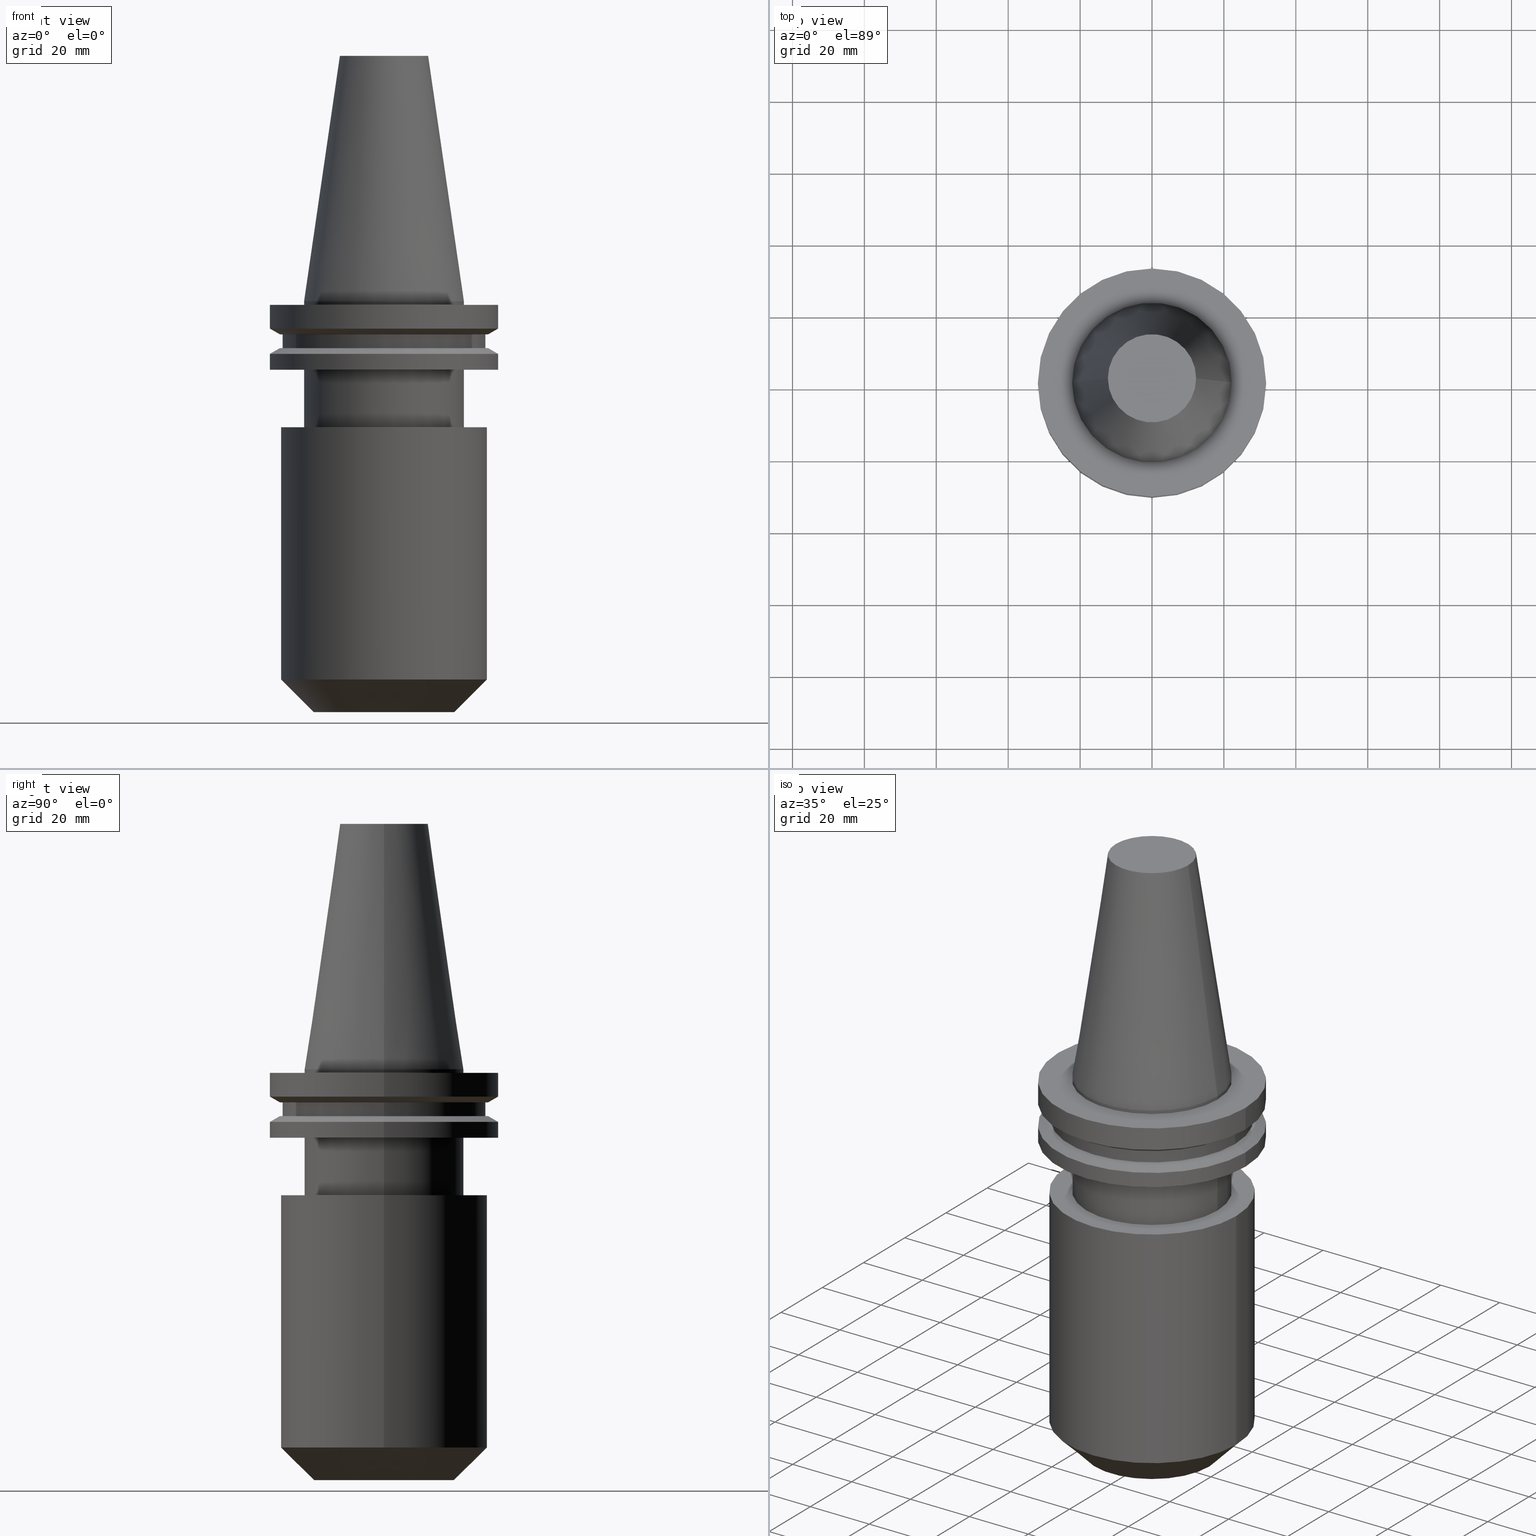
[diagram: canonical four-view strip — front | top / right | iso, engineering-drawing reading convention]
A machine part, canonical four-view strip (front | top / right | iso — engineering-drawing reading convention). The complete STEP part file that produces these views, byte-faithful:
ISO-10303-21;
HEADER;
FILE_DESCRIPTION (( 'STEP AP203' ),
    '1' );
FILE_NAME ('BCV40-EM1_000-4_5.stp',
    '2022-02-28T22:48:19',
    ( '' ),
    ( '' ),
    'SwSTEP 2.0',
    'SolidWorks 2021',
    '' );
FILE_SCHEMA (( 'CONFIG_CONTROL_DESIGN' ));
ENDSEC;

DATA;
#1 = DIRECTION ( 'NONE',  ( -0.000000000000000000, -0.000000000000000000, 1.000000000000000000 ) ) ;
#2 = CARTESIAN_POINT ( 'NONE',  ( 0.000000000000000000, 0.000000000000000000, 68.25000000000000000 ) ) ;
#3 = VECTOR ( 'NONE', #502, 999.9999999999998863 ) ;
#4 = EDGE_LOOP ( 'NONE', ( #632, #399, #512, #13 ) ) ;
#5 = CIRCLE ( 'NONE', #391, 28.60000000000000142 ) ;
#6 = ADVANCED_FACE ( 'NONE', ( #673 ), #540, .T. ) ;
#7 = DIRECTION ( 'NONE',  ( -0.000000000000000000, -0.000000000000000000, 1.000000000000000000 ) ) ;
#8 = DIRECTION ( 'NONE',  ( 1.000000000000000000, 0.000000000000000000, 0.000000000000000000 ) ) ;
#9 = EDGE_LOOP ( 'NONE', ( #341, #596, #669, #167 ) ) ;
#10 = DIRECTION ( 'NONE',  ( 1.000000000000000000, 0.000000000000000000, 0.000000000000000000 ) ) ;
#11 = DIRECTION ( 'NONE',  ( -1.000000000000000000, 0.000000000000000000, -0.000000000000000000 ) ) ;
#12 = EDGE_LOOP ( 'NONE', ( #845, #347, #551, #71 ) ) ;
#13 = ORIENTED_EDGE ( 'NONE', *, *, #793, .T. ) ;
#14 = EDGE_LOOP ( 'NONE', ( #287, #364 ) ) ;
#15 = APPROVAL_DATE_TIME ( #298, #760 ) ;
#16 = DIRECTION ( 'NONE',  ( -0.000000000000000000, -0.000000000000000000, 1.000000000000000000 ) ) ;
#17 = ORIENTED_EDGE ( 'NONE', *, *, #362, .T. ) ;
#18 = VECTOR ( 'NONE', #16, 1000.000000000000000 ) ;
#19 = EDGE_CURVE ( 'NONE', #98, #639, #259, .T. ) ;
#20 = AXIS2_PLACEMENT_3D ( 'NONE', #776, #185, #106 ) ;
#21 = ADVANCED_FACE ( 'NONE', ( #466 ), #181, .T. ) ;
#22 = COORDINATED_UNIVERSAL_TIME_OFFSET ( 6, 0, .BEHIND. ) ;
#23 = PLANE ( 'NONE',  #250 ) ;
#24 = DIRECTION ( 'NONE',  ( -0.000000000000000000, -0.000000000000000000, 1.000000000000000000 ) ) ;
#25 = EDGE_LOOP ( 'NONE', ( #724, #149 ) ) ;
#26 = CARTESIAN_POINT ( 'NONE',  ( 0.000000000000000000, 12.69999999999999929, -114.2999999999999972 ) ) ;
#27 = VERTEX_POINT ( 'NONE', #471 ) ;
#28 = APPROVAL_STATUS ( 'not_yet_approved' ) ;
#29 = DIRECTION ( 'NONE',  ( -1.000000000000000000, 0.000000000000000000, -0.000000000000000000 ) ) ;
#30 = ADVANCED_FACE ( 'NONE', ( #728 ), #655, .T. ) ;
#31 = DIRECTION ( 'NONE',  ( 1.000000000000000000, 0.000000000000000000, 0.000000000000000000 ) ) ;
#32 = AXIS2_PLACEMENT_3D ( 'NONE', #682, #363, #631 ) ;
#33 =( GEOMETRIC_REPRESENTATION_CONTEXT ( 3 ) GLOBAL_UNCERTAINTY_ASSIGNED_CONTEXT ( ( #675 ) ) GLOBAL_UNIT_ASSIGNED_CONTEXT ( ( #135, #667, #339 ) ) REPRESENTATION_CONTEXT ( 'NONE', 'WORKASPACE' ) );
#34 = APPROVAL_STATUS ( 'not_yet_approved' ) ;
#35 = EDGE_LOOP ( 'NONE', ( #42, #267 ) ) ;
#36 = CARTESIAN_POINT ( 'NONE',  ( 31.75000000000000000, 0.000000000000000000, -1.000000000000000888 ) ) ;
#37 = DIRECTION ( 'NONE',  ( 1.000000000000000000, 0.000000000000000000, 0.000000000000000000 ) ) ;
#38 = ADVANCED_FACE ( 'NONE', ( #680 ), #90, .F. ) ;
#39 = EDGE_LOOP ( 'NONE', ( #187, #726, #645, #543 ) ) ;
#40 = CARTESIAN_POINT ( 'NONE',  ( 0.000000000000000000, 0.000000000000000000, -1.000000000000000888 ) ) ;
#41 = DIRECTION ( 'NONE',  ( -0.000000000000000000, -0.000000000000000000, 1.000000000000000000 ) ) ;
#42 = ORIENTED_EDGE ( 'NONE', *, *, #407, .T. ) ;
#43 = AXIS2_PLACEMENT_3D ( 'NONE', #817, #498, #827 ) ;
#44 = DIRECTION ( 'NONE',  ( 1.000000000000000000, 0.000000000000000000, 0.000000000000000000 ) ) ;
#45 = EDGE_LOOP ( 'NONE', ( #278, #85 ) ) ;
#46 = FACE_OUTER_BOUND ( 'NONE', #39, .T. ) ;
#47 = CC_DESIGN_DATE_AND_TIME_ASSIGNMENT ( #93, #560, ( #198 ) ) ;
#48 = LINE ( 'NONE', #97, #3 ) ;
#49 = FACE_OUTER_BOUND ( 'NONE', #176, .T. ) ;
#50 = ORIENTED_EDGE ( 'NONE', *, *, #485, .F. ) ;
#51 = LINE ( 'NONE', #592, #305 ) ;
#52 = DIRECTION ( 'NONE',  ( 1.000000000000000000, 0.000000000000000000, 0.000000000000000000 ) ) ;
#53 = EDGE_LOOP ( 'NONE', ( #468, #274, #786, #256 ) ) ;
#54 = FACE_OUTER_BOUND ( 'NONE', #590, .T. ) ;
#55 = AXIS2_PLACEMENT_3D ( 'NONE', #781, #582, #190 ) ;
#56 = AXIS2_PLACEMENT_3D ( 'NONE', #366, #41, #304 ) ;
#57 = APPROVAL ( #28, 'UNSPECIFIED' ) ;
#58 = ORIENTED_EDGE ( 'NONE', *, *, #557, .T. ) ;
#59 = DIRECTION ( 'NONE',  ( 0.000000000000000000, -0.000000000000000000, 1.000000000000000000 ) ) ;
#60 = ORIENTED_EDGE ( 'NONE', *, *, #830, .F. ) ;
#61 = CARTESIAN_POINT ( 'NONE',  ( 0.000000000000000000, 31.74999999999999289, -19.04999999999999716 ) ) ;
#62 = EDGE_LOOP ( 'NONE', ( #415, #652, #447, #271 ) ) ;
#63 = EDGE_CURVE ( 'NONE', #27, #265, #616, .T. ) ;
#64 = DIRECTION ( 'NONE',  ( 1.000000000000000000, 0.000000000000000000, 0.000000000000000000 ) ) ;
#65 = DIRECTION ( 'NONE',  ( 1.000000000000000000, 0.000000000000000000, 0.000000000000000000 ) ) ;
#66 = DIRECTION ( 'NONE',  ( -0.8660254037844389297, 1.060575238724907285E-16, 0.4999999999999995004 ) ) ;
#67 = CARTESIAN_POINT ( 'NONE',  ( 0.000000000000000000, 0.000000000000000000, -14.65472339340266572 ) ) ;
#68 = CIRCLE ( 'NONE', #389, 19.49999999999996803 ) ;
#69 = ORIENTED_EDGE ( 'NONE', *, *, #428, .T. ) ;
#70 = AXIS2_PLACEMENT_3D ( 'NONE', #131, #125, #518 ) ;
#71 = ORIENTED_EDGE ( 'NONE', *, *, #723, .F. ) ;
#72 = EDGE_CURVE ( 'NONE', #739, #439, #555, .T. ) ;
#73 = FACE_BOUND ( 'NONE', #630, .T. ) ;
#74 = CYLINDRICAL_SURFACE ( 'NONE', #237, 31.75000000000000000 ) ;
#75 = ORIENTED_EDGE ( 'NONE', *, *, #390, .T. ) ;
#76 = EDGE_LOOP ( 'NONE', ( #196, #134 ) ) ;
#77 = PERSON ( 'UNSPECIFIED', 'UNSPECIFIED', 'UNSPECIFIED', ('UNSPECIFIED'), ('UNSPECIFIED'), ('UNSPECIFIED') ) ;
#78 = CARTESIAN_POINT ( 'NONE',  ( 0.000000000000000000, 0.000000000000000000, -9.205000000000005400 ) ) ;
#79 = ORIENTED_EDGE ( 'NONE', *, *, #772, .F. ) ;
#80 = EDGE_CURVE ( 'NONE', #265, #439, #475, .T. ) ;
#81 = EDGE_LOOP ( 'NONE', ( #840, #658, #805, #380 ) ) ;
#82 = COORDINATED_UNIVERSAL_TIME_OFFSET ( 6, 0, .BEHIND. ) ;
#83 = CARTESIAN_POINT ( 'NONE',  ( -12.27178102086201150, 0.000000000000000000, 68.25000000000000000 ) ) ;
#84 = CC_DESIGN_DATE_AND_TIME_ASSIGNMENT ( #671, #553, ( #600 ) ) ;
#85 = ORIENTED_EDGE ( 'NONE', *, *, #279, .F. ) ;
#86 = AXIS2_PLACEMENT_3D ( 'NONE', #773, #634, #580 ) ;
#87 = AXIS2_PLACEMENT_3D ( 'NONE', #264, #408, #403 ) ;
#88 = AXIS2_PLACEMENT_3D ( 'NONE', #800, #200, #654 ) ;
#89 = CARTESIAN_POINT ( 'NONE',  ( 0.000000000000000000, 0.000000000000000000, -19.04999999999999716 ) ) ;
#90 = CYLINDRICAL_SURFACE ( 'NONE', #702, 12.69999999999999929 ) ;
#91 = ORIENTED_EDGE ( 'NONE', *, *, #716, .F. ) ;
#92 = DIRECTION ( 'NONE',  ( -1.000000000000000000, 0.000000000000000000, 0.000000000000000000 ) ) ;
#93 = DATE_AND_TIME ( #741, #497 ) ;
#94 = DIRECTION ( 'NONE',  ( 1.000000000000000000, 0.000000000000000000, 0.000000000000000000 ) ) ;
#95 = FACE_OUTER_BOUND ( 'NONE', #81, .T. ) ;
#96 = APPROVAL_DATE_TIME ( #161, #57 ) ;
#97 = CARTESIAN_POINT ( 'NONE',  ( 22.22500000000000142, 2.721777511104992849E-15, 0.000000000000000000 ) ) ;
#98 = VERTEX_POINT ( 'NONE', #461 ) ;
#99 = AXIS2_PLACEMENT_3D ( 'NONE', #779, #644, #514 ) ;
#100 = AXIS2_PLACEMENT_3D ( 'NONE', #756, #165, #427 ) ;
#101 = AXIS2_PLACEMENT_3D ( 'NONE', #417, #261, #65 ) ;
#102 = AXIS2_PLACEMENT_3D ( 'NONE', #269, #794, #541 ) ;
#103 = CARTESIAN_POINT ( 'NONE',  ( 0.000000000000000000, 0.000000000000000000, 68.25000000000000000 ) ) ;
#104 = VERTEX_POINT ( 'NONE', #527 ) ;
#105 = CARTESIAN_POINT ( 'NONE',  ( 28.97919780457007732, 0.000000000000000000, -9.205000000000005400 ) ) ;
#106 = DIRECTION ( 'NONE',  ( 1.000000000000000000, 0.000000000000000000, 0.000000000000000000 ) ) ;
#107 = CARTESIAN_POINT ( 'NONE',  ( 0.000000000000000000, 0.000000000000000000, -13.05499999999999794 ) ) ;
#108 = ORIENTED_EDGE ( 'NONE', *, *, #485, .T. ) ;
#109 = ADVANCED_FACE ( 'NONE', ( #384, #54 ), #388, .F. ) ;
#110 = CARTESIAN_POINT ( 'NONE',  ( 0.000000000000000000, 0.000000000000000000, -9.204999999999991189 ) ) ;
#111 = DIRECTION ( 'NONE',  ( 1.000000000000000000, 0.000000000000000000, 0.000000000000000000 ) ) ;
#112 = EDGE_CURVE ( 'NONE', #837, #212, #123, .T. ) ;
#113 = ORIENTED_EDGE ( 'NONE', *, *, #235, .T. ) ;
#114 = DIRECTION ( 'NONE',  ( 1.000000000000000000, 0.000000000000000000, 0.000000000000000000 ) ) ;
#115 = AXIS2_PLACEMENT_3D ( 'NONE', #589, #59, #446 ) ;
#116 = CARTESIAN_POINT ( 'NONE',  ( 0.000000000000000000, 0.000000000000000000, -114.2999999999999972 ) ) ;
#117 = FACE_OUTER_BOUND ( 'NONE', #12, .T. ) ;
#118 = ORIENTED_EDGE ( 'NONE', *, *, #72, .T. ) ;
#119 = LINE ( 'NONE', #651, #460 ) ;
#120 = CARTESIAN_POINT ( 'NONE',  ( 0.000000000000000000, 0.000000000000000000, 68.25000000000000000 ) ) ;
#121 = CARTESIAN_POINT ( 'NONE',  ( 28.17999999999999972, 0.000000000000000000, -9.204999999999991189 ) ) ;
#122 = EDGE_CURVE ( 'NONE', #740, #635, #119, .T. ) ;
#123 = LINE ( 'NONE', #319, #343 ) ;
#124 = EDGE_CURVE ( 'NONE', #395, #578, #51, .T. ) ;
#125 = DIRECTION ( 'NONE',  ( -0.000000000000000000, -0.000000000000000000, 1.000000000000000000 ) ) ;
#126 = CARTESIAN_POINT ( 'NONE',  ( 31.75000000000000000, 3.888253587292846476E-15, -14.65472339340266572 ) ) ;
#127 = CARTESIAN_POINT ( 'NONE',  ( 0.000000000000000000, 0.000000000000000000, -14.65472339340266572 ) ) ;
#128 = AXIS2_PLACEMENT_3D ( 'NONE', #26, #745, #494 ) ;
#129 = ORIENTED_EDGE ( 'NONE', *, *, #63, .F. ) ;
#130 = ADVANCED_FACE ( 'NONE', ( #587 ), #358, .T. ) ;
#131 = CARTESIAN_POINT ( 'NONE',  ( 0.000000000000000000, 0.000000000000000000, -1.000000000000000888 ) ) ;
#132 = PERSON_AND_ORGANIZATION_ROLE ( 'design_owner' ) ;
#133 = DIRECTION ( 'NONE',  ( -0.000000000000000000, -0.000000000000000000, 1.000000000000000000 ) ) ;
#134 = ORIENTED_EDGE ( 'NONE', *, *, #322, .T. ) ;
#135 =( LENGTH_UNIT ( ) NAMED_UNIT ( * ) SI_UNIT ( .MILLI., .METRE. ) );
#136 = VERTEX_POINT ( 'NONE', #732 ) ;
#137 = CC_DESIGN_PERSON_AND_ORGANIZATION_ASSIGNMENT ( #228, #426, ( #600 ) ) ;
#138 = CARTESIAN_POINT ( 'NONE',  ( -31.74999999999999289, 3.888253587292845687E-15, -19.04999999999999716 ) ) ;
#139 = DIRECTION ( 'NONE',  ( -0.000000000000000000, -0.000000000000000000, 1.000000000000000000 ) ) ;
#140 = CIRCLE ( 'NONE', #762, 31.75000000000000000 ) ;
#141 = EDGE_LOOP ( 'NONE', ( #581, #316 ) ) ;
#142 = CONICAL_SURFACE ( 'NONE', #251, 31.75000000000000000, 1.047197551196597853 ) ;
#143 = CIRCLE ( 'NONE', #252, 28.97919780457008088 ) ;
#144 = ORIENTED_EDGE ( 'NONE', *, *, #767, .T. ) ;
#145 = CARTESIAN_POINT ( 'NONE',  ( -22.22500000000000142, 0.000000000000000000, 0.000000000000000000 ) ) ;
#146 = ORIENTED_EDGE ( 'NONE', *, *, #367, .T. ) ;
#147 = ADVANCED_FACE ( 'NONE', ( #257 ), #853, .T. ) ;
#148 = EDGE_LOOP ( 'NONE', ( #410, #244 ) ) ;
#149 = ORIENTED_EDGE ( 'NONE', *, *, #723, .T. ) ;
#150 = ORIENTED_EDGE ( 'NONE', *, *, #642, .F. ) ;
#151 = PERSON_AND_ORGANIZATION ( #77, #186 ) ;
#152 = DIRECTION ( 'NONE',  ( 1.000000000000000000, 0.000000000000000000, 0.000000000000000000 ) ) ;
#153 = ORIENTED_EDGE ( 'NONE', *, *, #19, .F. ) ;
#154 = DIRECTION ( 'NONE',  ( 0.000000000000000000, -0.000000000000000000, 1.000000000000000000 ) ) ;
#155 = DIRECTION ( 'NONE',  ( -0.000000000000000000, -0.000000000000000000, 1.000000000000000000 ) ) ;
#156 = CONICAL_SURFACE ( 'NONE', #20, 19.49999999999996803, 0.7853981633974501664 ) ;
#157 = CIRCLE ( 'NONE', #722, 28.60000000000000142 ) ;
#158 = APPROVAL_PERSON_ORGANIZATION ( #549, #288, #614 ) ;
#159 = DIRECTION ( 'NONE',  ( -1.000000000000000000, 0.000000000000000000, 0.000000000000000000 ) ) ;
#160 = ADVANCED_FACE ( 'NONE', ( #529, #249 ), #522, .F. ) ;
#161 = DATE_AND_TIME ( #627, #661 ) ;
#162 = DIRECTION ( 'NONE',  ( 1.000000000000000000, 0.000000000000000000, 0.000000000000000000 ) ) ;
#163 = CARTESIAN_POINT ( 'NONE',  ( 0.000000000000000000, 0.000000000000000000, -19.04999999999999716 ) ) ;
#164 = PERSON_AND_ORGANIZATION ( #77, #186 ) ;
#165 = DIRECTION ( 'NONE',  ( -0.000000000000000000, -0.000000000000000000, 1.000000000000000000 ) ) ;
#166 = ORIENTED_EDGE ( 'NONE', *, *, #850, .T. ) ;
#167 = ORIENTED_EDGE ( 'NONE', *, *, #355, .F. ) ;
#168 = CONICAL_SURFACE ( 'NONE', #99, 22.22500000000000142, 0.1448138465474119174 ) ;
#169 = VECTOR ( 'NONE', #365, 1000.000000000000000 ) ;
#170 = CARTESIAN_POINT ( 'NONE',  ( 0.000000000000000000, 0.000000000000000000, -35.04999999999999716 ) ) ;
#171 = CARTESIAN_POINT ( 'NONE',  ( -28.97919780457007732, 3.718590885307660666E-15, -9.205000000000005400 ) ) ;
#172 = ORIENTED_EDGE ( 'NONE', *, *, #526, .F. ) ;
#173 = EDGE_CURVE ( 'NONE', #739, #27, #492, .T. ) ;
#174 = ADVANCED_FACE ( 'NONE', ( #46 ), #168, .T. ) ;
#175 = DIRECTION ( 'NONE',  ( -0.000000000000000000, -0.000000000000000000, 1.000000000000000000 ) ) ;
#176 = EDGE_LOOP ( 'NONE', ( #454, #217, #774, #241 ) ) ;
#177 = CARTESIAN_POINT ( 'NONE',  ( 0.000000000000000000, 0.000000000000000000, 0.000000000000000000 ) ) ;
#178 = CARTESIAN_POINT ( 'NONE',  ( -31.75000000000000000, 3.888253587292846476E-15, 68.25000000000000000 ) ) ;
#179 = EDGE_CURVE ( 'NONE', #621, #837, #455, .T. ) ;
#180 = ORIENTED_EDGE ( 'NONE', *, *, #591, .T. ) ;
#181 = CONICAL_SURFACE ( 'NONE', #289, 28.97919780457007732, 1.047197551196598297 ) ;
#182 = DIRECTION ( 'NONE',  ( 1.000000000000000000, 0.000000000000000000, 0.000000000000000000 ) ) ;
#183 = AXIS2_PLACEMENT_3D ( 'NONE', #78, #815, #162 ) ;
#184 = CIRCLE ( 'NONE', #849, 22.22500000000000142 ) ;
#185 = DIRECTION ( 'NONE',  ( -0.000000000000000000, -0.000000000000000000, 1.000000000000000000 ) ) ;
#186 = ORGANIZATION ( 'UNSPECIFIED', 'UNSPECIFIED', '' ) ;
#187 = ORIENTED_EDGE ( 'NONE', *, *, #367, .F. ) ;
#188 = CARTESIAN_POINT ( 'NONE',  ( 28.60000000000000142, 0.000000000000000000, -35.04999999999999716 ) ) ;
#189 = DIRECTION ( 'NONE',  ( 1.000000000000000000, 0.000000000000000000, 0.000000000000000000 ) ) ;
#190 = DIRECTION ( 'NONE',  ( 1.000000000000000000, 0.000000000000000000, 0.000000000000000000 ) ) ;
#191 = DIRECTION ( 'NONE',  ( -1.000000000000000000, 0.000000000000000000, 0.000000000000000000 ) ) ;
#192 = VERTEX_POINT ( 'NONE', #855 ) ;
#193 = CIRCLE ( 'NONE', #344, 28.60000000000000142 ) ;
#194 = DIRECTION ( 'NONE',  ( -0.000000000000000000, -0.000000000000000000, 1.000000000000000000 ) ) ;
#195 = ADVANCED_FACE ( 'NONE', ( #405 ), #74, .T. ) ;
#196 = ORIENTED_EDGE ( 'NONE', *, *, #825, .T. ) ;
#197 = CARTESIAN_POINT ( 'NONE',  ( -28.60000000000000142, 3.502489845561430207E-15, -105.2000000000000028 ) ) ;
#198 = PRODUCT_DEFINITION ( 'UNKNOWN', '', #804, #685 ) ;
#199 = EDGE_LOOP ( 'NONE', ( #795, #792 ) ) ;
#200 = DIRECTION ( 'NONE',  ( -0.000000000000000000, -0.000000000000000000, 1.000000000000000000 ) ) ;
#201 = EDGE_LOOP ( 'NONE', ( #69, #146 ) ) ;
#202 = EDGE_LOOP ( 'NONE', ( #770, #721, #17, #336 ) ) ;
#203 = LINE ( 'NONE', #535, #294 ) ;
#204 = FACE_OUTER_BOUND ( 'NONE', #700, .T. ) ;
#205 = CARTESIAN_POINT ( 'NONE',  ( 0.000000000000000000, 0.000000000000000000, -9.205000000000005400 ) ) ;
#206 = EDGE_LOOP ( 'NONE', ( #664, #481, #338, #803 ) ) ;
#207 = AXIS2_PLACEMENT_3D ( 'NONE', #116, #175, #37 ) ;
#208 = ADVANCED_FACE ( 'NONE', ( #771 ), #775, .F. ) ;
#209 = DIRECTION ( 'NONE',  ( -0.000000000000000000, -0.000000000000000000, 1.000000000000000000 ) ) ;
#210 = DIRECTION ( 'NONE',  ( -0.000000000000000000, -0.000000000000000000, 1.000000000000000000 ) ) ;
#211 = AXIS2_PLACEMENT_3D ( 'NONE', #40, #233, #435 ) ;
#212 = VERTEX_POINT ( 'NONE', #188 ) ;
#213 = AXIS2_PLACEMENT_3D ( 'NONE', #356, #227, #159 ) ;
#214 = CARTESIAN_POINT ( 'NONE',  ( 28.17999999999999972, 0.000000000000000000, 68.25000000000000000 ) ) ;
#215 = APPROVAL_ROLE ( '' ) ;
#216 = CYLINDRICAL_SURFACE ( 'NONE', #476, 28.17999999999999972 ) ;
#217 = ORIENTED_EDGE ( 'NONE', *, *, #63, .T. ) ;
#218 = DATE_AND_TIME ( #351, #309 ) ;
#219 = LINE ( 'NONE', #145, #748 ) ;
#220 = CARTESIAN_POINT ( 'NONE',  ( 22.22500000000000142, 0.000000000000000000, 68.25000000000000000 ) ) ;
#221 = ADVANCED_FACE ( 'NONE', ( #640 ), #314, .T. ) ;
#222 = CARTESIAN_POINT ( 'NONE',  ( 19.49999999999996803, 0.000000000000000000, -114.2999999999999972 ) ) ;
#223 = APPROVAL_ROLE ( '' ) ;
#224 = FACE_BOUND ( 'NONE', #35, .T. ) ;
#225 = CIRCLE ( 'NONE', #183, 28.97919780457007732 ) ;
#226 = CIRCLE ( 'NONE', #562, 31.75000000000000000 ) ;
#227 = DIRECTION ( 'NONE',  ( 0.000000000000000000, 0.000000000000000000, -1.000000000000000000 ) ) ;
#228 = PERSON_AND_ORGANIZATION ( #77, #186 ) ;
#229 = CARTESIAN_POINT ( 'NONE',  ( -28.60000000000000142, 3.502489845561430207E-15, 0.000000000000000000 ) ) ;
#230 = DIRECTION ( 'NONE',  ( 0.8660254037844389297, 0.000000000000000000, 0.4999999999999995004 ) ) ;
#231 = CYLINDRICAL_SURFACE ( 'NONE', #320, 22.22500000000000142 ) ;
#232 = ORIENTED_EDGE ( 'NONE', *, *, #620, .T. ) ;
#233 = DIRECTION ( 'NONE',  ( -0.000000000000000000, -0.000000000000000000, 1.000000000000000000 ) ) ;
#234 = DIRECTION ( 'NONE',  ( -0.000000000000000000, -0.000000000000000000, 1.000000000000000000 ) ) ;
#235 = EDGE_CURVE ( 'NONE', #98, #104, #448, .T. ) ;
#236 = EDGE_LOOP ( 'NONE', ( #778, #841, #394, #821 ) ) ;
#237 = AXIS2_PLACEMENT_3D ( 'NONE', #575, #838, #242 ) ;
#238 = CIRCLE ( 'NONE', #545, 31.75000000000000000 ) ;
#239 = DIRECTION ( 'NONE',  ( 1.000000000000000000, 0.000000000000000000, 0.000000000000000000 ) ) ;
#240 = LINE ( 'NONE', #253, #507 ) ;
#241 = ORIENTED_EDGE ( 'NONE', *, *, #72, .F. ) ;
#242 = DIRECTION ( 'NONE',  ( 1.000000000000000000, 0.000000000000000000, 0.000000000000000000 ) ) ;
#243 = DIRECTION ( 'NONE',  ( -0.000000000000000000, -0.000000000000000000, 1.000000000000000000 ) ) ;
#244 = ORIENTED_EDGE ( 'NONE', *, *, #332, .T. ) ;
#245 = DIRECTION ( 'NONE',  ( -1.000000000000000000, 0.000000000000000000, -0.000000000000000000 ) ) ;
#246 = EDGE_CURVE ( 'NONE', #670, #434, #225, .T. ) ;
#247 = FACE_OUTER_BOUND ( 'NONE', #236, .T. ) ;
#248 = ORIENTED_EDGE ( 'NONE', *, *, #499, .F. ) ;
#249 = FACE_BOUND ( 'NONE', #148, .T. ) ;
#250 = AXIS2_PLACEMENT_3D ( 'NONE', #346, #615, #11 ) ;
#251 = AXIS2_PLACEMENT_3D ( 'NONE', #567, #761, #92 ) ;
#252 = AXIS2_PLACEMENT_3D ( 'NONE', #783, #209, #528 ) ;
#253 = CARTESIAN_POINT ( 'NONE',  ( 31.75000000000000000, 0.000000000000000000, 68.25000000000000000 ) ) ;
#254 = DIRECTION ( 'NONE',  ( -0.000000000000000000, -0.000000000000000000, 1.000000000000000000 ) ) ;
#255 = PLANE ( 'NONE',  #87 ) ;
#256 = ORIENTED_EDGE ( 'NONE', *, *, #653, .F. ) ;
#257 = FACE_OUTER_BOUND ( 'NONE', #520, .T. ) ;
#258 = DIRECTION ( 'NONE',  ( 1.000000000000000000, 0.000000000000000000, 0.000000000000000000 ) ) ;
#259 = LINE ( 'NONE', #531, #490 ) ;
#260 = ADVANCED_FACE ( 'NONE', ( #292 ), #216, .T. ) ;
#261 = DIRECTION ( 'NONE',  ( -0.000000000000000000, -0.000000000000000000, 1.000000000000000000 ) ) ;
#262 = AXIS2_PLACEMENT_3D ( 'NONE', #89, #286, #742 ) ;
#263 = AXIS2_PLACEMENT_3D ( 'NONE', #473, #605, #258 ) ;
#264 = CARTESIAN_POINT ( 'NONE',  ( 0.000000000000000000, 31.75000000000000000, -0.9999999999999995559 ) ) ;
#265 = VERTEX_POINT ( 'NONE', #425 ) ;
#266 = LINE ( 'NONE', #662, #708 ) ;
#267 = ORIENTED_EDGE ( 'NONE', *, *, #499, .T. ) ;
#268 = ADVANCED_FACE ( 'NONE', ( #684, #224 ), #414, .F. ) ;
#269 = CARTESIAN_POINT ( 'NONE',  ( 0.000000000000000000, 0.000000000000000000, -19.04999999999999716 ) ) ;
#270 = CARTESIAN_POINT ( 'NONE',  ( 0.000000000000000000, 22.22499999999999787, -35.04999999999999716 ) ) ;
#271 = ORIENTED_EDGE ( 'NONE', *, *, #112, .F. ) ;
#272 = ORIENTED_EDGE ( 'NONE', *, *, #854, .F. ) ;
#273 = DIRECTION ( 'NONE',  ( 1.000000000000000000, 0.000000000000000000, 0.000000000000000000 ) ) ;
#274 = ORIENTED_EDGE ( 'NONE', *, *, #730, .T. ) ;
#275 = PERSON_AND_ORGANIZATION ( #77, #186 ) ;
#276 = FACE_OUTER_BOUND ( 'NONE', #76, .T. ) ;
#277 = VECTOR ( 'NONE', #230, 1000.000000000000000 ) ;
#278 = ORIENTED_EDGE ( 'NONE', *, *, #850, .F. ) ;
#279 = EDGE_CURVE ( 'NONE', #782, #484, #521, .T. ) ;
#280 = APPROVAL_DATE_TIME ( #218, #288 ) ;
#281 = PLANE ( 'NONE',  #584 ) ;
#282 = CARTESIAN_POINT ( 'NONE',  ( 0.000000000000000000, 0.000000000000000000, 0.000000000000000000 ) ) ;
#283 = EDGE_CURVE ( 'NONE', #635, #136, #140, .T. ) ;
#284 = ORIENTED_EDGE ( 'NONE', *, *, #301, .T. ) ;
#285 = DIRECTION ( 'NONE',  ( -0.000000000000000000, -0.000000000000000000, 1.000000000000000000 ) ) ;
#286 = DIRECTION ( 'NONE',  ( -0.000000000000000000, -0.000000000000000000, 1.000000000000000000 ) ) ;
#287 = ORIENTED_EDGE ( 'NONE', *, *, #767, .F. ) ;
#288 = APPROVAL ( #806, 'UNSPECIFIED' ) ;
#289 = AXIS2_PLACEMENT_3D ( 'NONE', #205, #133, #538 ) ;
#290 = COORDINATED_UNIVERSAL_TIME_OFFSET ( 6, 0, .BEHIND. ) ;
#291 = PRODUCT ( 'BCV40-EM1_000-4_5', 'BCV40-EM1_000-4_5', '', ( #725 ) ) ;
#292 = FACE_OUTER_BOUND ( 'NONE', #743, .T. ) ;
#293 = AXIS2_PLACEMENT_3D ( 'NONE', #801, #603, #29 ) ;
#294 = VECTOR ( 'NONE', #744, 1000.000000000000000 ) ;
#295 = CARTESIAN_POINT ( 'NONE',  ( 22.22500000000000142, 0.000000000000000000, -1.000000000000000888 ) ) ;
#296 = LOCAL_TIME ( 16, 48, 19.00000000000000000, #413 ) ;
#297 = LINE ( 'NONE', #694, #169 ) ;
#298 = DATE_AND_TIME ( #810, #348 ) ;
#299 = ORIENTED_EDGE ( 'NONE', *, *, #583, .T. ) ;
#300 = DIRECTION ( 'NONE',  ( -1.000000000000000000, 0.000000000000000000, 0.000000000000000000 ) ) ;
#301 = EDGE_CURVE ( 'NONE', #621, #411, #68, .T. ) ;
#302 = VERTEX_POINT ( 'NONE', #561 ) ;
#303 = CARTESIAN_POINT ( 'NONE',  ( -22.22500000000000142, 2.721777511104992849E-15, -19.04999999999999716 ) ) ;
#304 = DIRECTION ( 'NONE',  ( 1.000000000000000000, 0.000000000000000000, 0.000000000000000000 ) ) ;
#305 = VECTOR ( 'NONE', #579, 1000.000000000000000 ) ;
#306 = ORIENTED_EDGE ( 'NONE', *, *, #711, .T. ) ;
#307 = AXIS2_PLACEMENT_3D ( 'NONE', #110, #234, #44 ) ;
#308 = CIRCLE ( 'NONE', #450, 28.97919780457007732 ) ;
#309 = LOCAL_TIME ( 16, 48, 19.00000000000000000, #22 ) ;
#310 = DIRECTION ( 'NONE',  ( -0.000000000000000000, -0.000000000000000000, 1.000000000000000000 ) ) ;
#311 = ORIENTED_EDGE ( 'NONE', *, *, #246, .F. ) ;
#312 = ADVANCED_FACE ( 'NONE', ( #354 ), #820, .F. ) ;
#313 = ORIENTED_EDGE ( 'NONE', *, *, #332, .F. ) ;
#314 = CYLINDRICAL_SURFACE ( 'NONE', #597, 28.60000000000000142 ) ;
#315 = LINE ( 'NONE', #178, #462 ) ;
#316 = ORIENTED_EDGE ( 'NONE', *, *, #557, .F. ) ;
#317 = DIRECTION ( 'NONE',  ( -0.000000000000000000, -0.000000000000000000, 1.000000000000000000 ) ) ;
#318 = FACE_OUTER_BOUND ( 'NONE', #693, .T. ) ;
#319 = CARTESIAN_POINT ( 'NONE',  ( 28.60000000000000142, 0.000000000000000000, 0.000000000000000000 ) ) ;
#320 = AXIS2_PLACEMENT_3D ( 'NONE', #844, #699, #371 ) ;
#321 = VECTOR ( 'NONE', #836, 1000.000000000000000 ) ;
#322 = EDGE_CURVE ( 'NONE', #826, #192, #720, .T. ) ;
#323 = CARTESIAN_POINT ( 'NONE',  ( 0.000000000000000000, 0.000000000000000000, 0.000000000000000000 ) ) ;
#324 = CARTESIAN_POINT ( 'NONE',  ( 19.49999999999996803, 0.000000000000000000, -114.2999999999999972 ) ) ;
#325 = EDGE_CURVE ( 'NONE', #608, #372, #479, .T. ) ;
#326 = CARTESIAN_POINT ( 'NONE',  ( 0.000000000000000000, 0.000000000000000000, 0.000000000000000000 ) ) ;
#327 = DIRECTION ( 'NONE',  ( 1.000000000000000000, 0.000000000000000000, 0.000000000000000000 ) ) ;
#328 = DIRECTION ( 'NONE',  ( -0.000000000000000000, -0.000000000000000000, 1.000000000000000000 ) ) ;
#329 = AXIS2_PLACEMENT_3D ( 'NONE', #323, #641, #511 ) ;
#330 = CYLINDRICAL_SURFACE ( 'NONE', #833, 22.22500000000000142 ) ;
#331 = VERTEX_POINT ( 'NONE', #83 ) ;
#332 = EDGE_CURVE ( 'NONE', #688, #368, #637, .T. ) ;
#333 = DIRECTION ( 'NONE',  ( 1.000000000000000000, 0.000000000000000000, 0.000000000000000000 ) ) ;
#334 = DIRECTION ( 'NONE',  ( 1.000000000000000000, 0.000000000000000000, 0.000000000000000000 ) ) ;
#335 = ORIENTED_EDGE ( 'NONE', *, *, #355, .T. ) ;
#336 = ORIENTED_EDGE ( 'NONE', *, *, #80, .T. ) ;
#337 = ORIENTED_EDGE ( 'NONE', *, *, #124, .T. ) ;
#338 = ORIENTED_EDGE ( 'NONE', *, *, #830, .T. ) ;
#339 =( NAMED_UNIT ( * ) SI_UNIT ( $, .STERADIAN. ) SOLID_ANGLE_UNIT ( ) );
#340 = FACE_BOUND ( 'NONE', #14, .T. ) ;
#341 = ORIENTED_EDGE ( 'NONE', *, *, #325, .F. ) ;
#342 = ORIENTED_EDGE ( 'NONE', *, *, #179, .T. ) ;
#343 = VECTOR ( 'NONE', #785, 1000.000000000000000 ) ;
#344 = AXIS2_PLACEMENT_3D ( 'NONE', #619, #210, #737 ) ;
#345 = PERSON_AND_ORGANIZATION_ROLE ( 'design_supplier' ) ;
#346 = CARTESIAN_POINT ( 'NONE',  ( 0.000000000000000000, 28.17999999999999972, -13.05499999999999794 ) ) ;
#347 = ORIENTED_EDGE ( 'NONE', *, *, #665, .T. ) ;
#348 = LOCAL_TIME ( 16, 48, 19.00000000000000000, #686 ) ;
#349 = ORIENTED_EDGE ( 'NONE', *, *, #583, .F. ) ;
#350 = ADVANCED_FACE ( 'NONE', ( #340, #276 ), #23, .F. ) ;
#351 = CALENDAR_DATE ( 2022, 28, 2 ) ;
#352 = DIRECTION ( 'NONE',  ( -0.000000000000000000, -0.000000000000000000, 1.000000000000000000 ) ) ;
#353 = ADVANCED_FACE ( 'NONE', ( #807 ), #281, .F. ) ;
#354 = FACE_OUTER_BOUND ( 'NONE', #201, .T. ) ;
#355 = EDGE_CURVE ( 'NONE', #372, #212, #193, .T. ) ;
#356 = CARTESIAN_POINT ( 'NONE',  ( 0.000000000000000000, 0.000000000000000000, 0.000000000000000000 ) ) ;
#357 = SECURITY_CLASSIFICATION_LEVEL ( 'unclassified' ) ;
#358 = CONICAL_SURFACE ( 'NONE', #571, 31.75000000000000000, 1.047197551196597853 ) ;
#359 = CARTESIAN_POINT ( 'NONE',  ( 0.000000000000000000, 0.000000000000000000, -35.04999999999999716 ) ) ;
#360 = CIRCLE ( 'NONE', #43, 12.69999999999999929 ) ;
#361 = EDGE_LOOP ( 'NONE', ( #248, #337, #306, #60 ) ) ;
#362 = EDGE_CURVE ( 'NONE', #331, #265, #219, .T. ) ;
#363 = DIRECTION ( 'NONE',  ( -0.000000000000000000, -0.000000000000000000, 1.000000000000000000 ) ) ;
#364 = ORIENTED_EDGE ( 'NONE', *, *, #235, .F. ) ;
#365 = DIRECTION ( 'NONE',  ( -0.8660254037844387076, 0.000000000000000000, -0.4999999999999998890 ) ) ;
#366 = CARTESIAN_POINT ( 'NONE',  ( 0.000000000000000000, 0.000000000000000000, -114.2999999999999972 ) ) ;
#367 = EDGE_CURVE ( 'NONE', #503, #331, #506, .T. ) ;
#368 = VERTEX_POINT ( 'NONE', #554 ) ;
#369 = APPLICATION_CONTEXT ( 'configuration controlled 3d designs of mechanical parts and assemblies' ) ;
#370 = EDGE_CURVE ( 'NONE', #411, #608, #811, .T. ) ;
#371 = DIRECTION ( 'NONE',  ( 1.000000000000000000, 0.000000000000000000, 0.000000000000000000 ) ) ;
#372 = VERTEX_POINT ( 'NONE', #568 ) ;
#373 = AXIS2_PLACEMENT_3D ( 'NONE', #799, #1, #64 ) ;
#374 = DIRECTION ( 'NONE',  ( 1.000000000000000000, 0.000000000000000000, 0.000000000000000000 ) ) ;
#375 = ORIENTED_EDGE ( 'NONE', *, *, #753, .T. ) ;
#376 = CIRCLE ( 'NONE', #559, 12.27178102086201150 ) ;
#377 = DIRECTION ( 'NONE',  ( 1.000000000000000000, 0.000000000000000000, 0.000000000000000000 ) ) ;
#378 = AXIS2_PLACEMENT_3D ( 'NONE', #648, #787, #451 ) ;
#379 = DIRECTION ( 'NONE',  ( -0.000000000000000000, -0.000000000000000000, 1.000000000000000000 ) ) ;
#380 = ORIENTED_EDGE ( 'NONE', *, *, #729, .F. ) ;
#381 = DIRECTION ( 'NONE',  ( 0.000000000000000000, -0.000000000000000000, 1.000000000000000000 ) ) ;
#382 = CYLINDRICAL_SURFACE ( 'NONE', #650, 31.75000000000000000 ) ;
#383 = ORIENTED_EDGE ( 'NONE', *, *, #642, .T. ) ;
#384 = FACE_BOUND ( 'NONE', #400, .T. ) ;
#385 = CARTESIAN_POINT ( 'NONE',  ( 22.22500000000000142, 0.000000000000000000, -35.04999999999999716 ) ) ;
#386 = DIRECTION ( 'NONE',  ( 0.8660254037844387076, 1.060575238724906915E-16, -0.4999999999999998890 ) ) ;
#387 = AXIS2_PLACEMENT_3D ( 'NONE', #489, #317, #459 ) ;
#388 = PLANE ( 'NONE',  #609 ) ;
#389 = AXIS2_PLACEMENT_3D ( 'NONE', #752, #606, #550 ) ;
#390 = EDGE_CURVE ( 'NONE', #782, #574, #315, .T. ) ;
#391 = AXIS2_PLACEMENT_3D ( 'NONE', #798, #594, #8 ) ;
#392 = APPLICATION_PROTOCOL_DEFINITION ( 'international standard', 'config_control_design', 1994, #369 ) ;
#393 = PLANE ( 'NONE',  #115 ) ;
#394 = ORIENTED_EDGE ( 'NONE', *, *, #526, .T. ) ;
#395 = VERTEX_POINT ( 'NONE', #636 ) ;
#396 = CARTESIAN_POINT ( 'NONE',  ( 0.000000000000000000, 0.000000000000000000, -7.605276606597335842 ) ) ;
#397 = EDGE_CURVE ( 'NONE', #829, #738, #586, .T. ) ;
#398 = DIRECTION ( 'NONE',  ( 0.000000000000000000, 0.000000000000000000, 1.000000000000000000 ) ) ;
#399 = ORIENTED_EDGE ( 'NONE', *, *, #825, .F. ) ;
#400 = EDGE_LOOP ( 'NONE', ( #383, #516 ) ) ;
#401 = AXIS2_PLACEMENT_3D ( 'NONE', #834, #243, #757 ) ;
#402 = CIRCLE ( 'NONE', #329, 22.22500000000000142 ) ;
#403 = DIRECTION ( 'NONE',  ( -1.000000000000000000, 0.000000000000000000, -0.000000000000000000 ) ) ;
#404 = CC_DESIGN_APPROVAL ( #57, ( #198 ) ) ;
#405 = FACE_OUTER_BOUND ( 'NONE', #569, .T. ) ;
#406 = EDGE_LOOP ( 'NONE', ( #50, #150, #299, #313 ) ) ;
#407 = EDGE_CURVE ( 'NONE', #808, #395, #690, .T. ) ;
#408 = DIRECTION ( 'NONE',  ( 0.000000000000000000, 0.000000000000000000, -1.000000000000000000 ) ) ;
#409 = DIRECTION ( 'NONE',  ( -0.1443082272672999711, 0.000000000000000000, -0.9895327864921755756 ) ) ;
#410 = ORIENTED_EDGE ( 'NONE', *, *, #716, .T. ) ;
#411 = VERTEX_POINT ( 'NONE', #441 ) ;
#412 = ORIENTED_EDGE ( 'NONE', *, *, #665, .F. ) ;
#413 = COORDINATED_UNIVERSAL_TIME_OFFSET ( 6, 0, .BEHIND. ) ;
#414 = PLANE ( 'NONE',  #128 ) ;
#415 = ORIENTED_EDGE ( 'NONE', *, *, #772, .T. ) ;
#416 = ADVANCED_FACE ( 'NONE', ( #445 ), #231, .T. ) ;
#417 = CARTESIAN_POINT ( 'NONE',  ( 0.000000000000000000, 0.000000000000000000, -35.04999999999999716 ) ) ;
#418 = PRODUCT_DEFINITION_SHAPE ( 'NONE', 'NONE',  #198 ) ;
#419 = APPLICATION_CONTEXT ( 'configuration controlled 3d designs of mechanical parts and assemblies' ) ;
#420 = VECTOR ( 'NONE', #310, 1000.000000000000000 ) ;
#421 = CARTESIAN_POINT ( 'NONE',  ( 0.000000000000000000, 0.000000000000000000, 68.25000000000000000 ) ) ;
#422 = DIRECTION ( 'NONE',  ( -0.000000000000000000, -0.000000000000000000, 1.000000000000000000 ) ) ;
#423 = APPROVAL_PERSON_ORGANIZATION ( #151, #760, #215 ) ;
#424 = DIRECTION ( 'NONE',  ( -0.000000000000000000, -0.000000000000000000, 1.000000000000000000 ) ) ;
#425 = CARTESIAN_POINT ( 'NONE',  ( -22.22500000000000142, 0.000000000000000000, 0.000000000000000000 ) ) ;
#426 = PERSON_AND_ORGANIZATION_ROLE ( 'classification_officer' ) ;
#427 = DIRECTION ( 'NONE',  ( 1.000000000000000000, 0.000000000000000000, 0.000000000000000000 ) ) ;
#428 = EDGE_CURVE ( 'NONE', #331, #503, #376, .T. ) ;
#429 = EDGE_LOOP ( 'NONE', ( #508, #698, #790, #412 ) ) ;
#430 = ADVANCED_BREP_SHAPE_REPRESENTATION ( 'BCV40-EM1_000-4_5', ( #666, #536 ), #33 ) ;
#431 = CIRCLE ( 'NONE', #401, 28.17999999999999972 ) ;
#432 = CIRCLE ( 'NONE', #611, 28.17999999999999972 ) ;
#433 = DIRECTION ( 'NONE',  ( -0.000000000000000000, -0.000000000000000000, 1.000000000000000000 ) ) ;
#434 = VERTEX_POINT ( 'NONE', #171 ) ;
#435 = DIRECTION ( 'NONE',  ( 1.000000000000000000, 0.000000000000000000, 0.000000000000000000 ) ) ;
#436 = ADVANCED_FACE ( 'NONE', ( #247 ), #576, .T. ) ;
#437 = DIRECTION ( 'NONE',  ( -1.000000000000000000, 0.000000000000000000, 0.000000000000000000 ) ) ;
#438 = CYLINDRICAL_SURFACE ( 'NONE', #573, 22.22500000000000142 ) ;
#439 = VERTEX_POINT ( 'NONE', #839 ) ;
#440 = EDGE_CURVE ( 'NONE', #503, #439, #48, .T. ) ;
#441 = CARTESIAN_POINT ( 'NONE',  ( -19.49999999999996803, 2.945275551949382601E-15, -114.2999999999999972 ) ) ;
#442 = DIRECTION ( 'NONE',  ( -0.000000000000000000, -0.000000000000000000, 1.000000000000000000 ) ) ;
#443 = ORIENTED_EDGE ( 'NONE', *, *, #784, .F. ) ;
#444 = DIRECTION ( 'NONE',  ( -0.000000000000000000, -0.000000000000000000, 1.000000000000000000 ) ) ;
#445 = FACE_OUTER_BOUND ( 'NONE', #852, .T. ) ;
#446 = DIRECTION ( 'NONE',  ( 1.000000000000000000, 0.000000000000000000, 0.000000000000000000 ) ) ;
#447 = ORIENTED_EDGE ( 'NONE', *, *, #591, .F. ) ;
#448 = CIRCLE ( 'NONE', #659, 28.17999999999999972 ) ;
#449 = CARTESIAN_POINT ( 'NONE',  ( 0.000000000000000000, 0.000000000000000000, -13.05499999999999794 ) ) ;
#450 = AXIS2_PLACEMENT_3D ( 'NONE', #491, #424, #558 ) ;
#451 = DIRECTION ( 'NONE',  ( 1.000000000000000000, 0.000000000000000000, 0.000000000000000000 ) ) ;
#452 = DIRECTION ( 'NONE',  ( 0.000000000000000000, 0.000000000000000000, -1.000000000000000000 ) ) ;
#453 = DIRECTION ( 'NONE',  ( -0.000000000000000000, -0.000000000000000000, 1.000000000000000000 ) ) ;
#454 = ORIENTED_EDGE ( 'NONE', *, *, #173, .T. ) ;
#455 = LINE ( 'NONE', #324, #647 ) ;
#456 = LINE ( 'NONE', #712, #321 ) ;
#457 = EDGE_CURVE ( 'NONE', #639, #547, #431, .T. ) ;
#458 = CARTESIAN_POINT ( 'NONE',  ( -28.97919780457007732, 3.548928183322474856E-15, -9.205000000000005400 ) ) ;
#459 = DIRECTION ( 'NONE',  ( 1.000000000000000000, 0.000000000000000000, 0.000000000000000000 ) ) ;
#460 = VECTOR ( 'NONE', #254, 1000.000000000000000 ) ;
#461 = CARTESIAN_POINT ( 'NONE',  ( -28.17999999999999972, 3.451054679997241634E-15, -13.05499999999999794 ) ) ;
#462 = VECTOR ( 'NONE', #824, 1000.000000000000000 ) ;
#463 = VECTOR ( 'NONE', #386, 1000.000000000000000 ) ;
#464 = CIRCLE ( 'NONE', #102, 31.74999999999999289 ) ;
#465 = PERSON_AND_ORGANIZATION ( #77, #186 ) ;
#466 = FACE_OUTER_BOUND ( 'NONE', #429, .T. ) ;
#467 = EDGE_CURVE ( 'NONE', #547, #639, #676, .T. ) ;
#468 = ORIENTED_EDGE ( 'NONE', *, *, #246, .T. ) ;
#469 = LINE ( 'NONE', #214, #588 ) ;
#470 = ORIENTED_EDGE ( 'NONE', *, *, #370, .F. ) ;
#471 = CARTESIAN_POINT ( 'NONE',  ( -22.22500000000000142, 2.721777511104992849E-15, -1.000000000000000888 ) ) ;
#472 = DIRECTION ( 'NONE',  ( -0.000000000000000000, -0.000000000000000000, 1.000000000000000000 ) ) ;
#473 = CARTESIAN_POINT ( 'NONE',  ( 0.000000000000000000, 0.000000000000000000, -114.2999999999999972 ) ) ;
#474 = CARTESIAN_POINT ( 'NONE',  ( 0.000000000000000000, 0.000000000000000000, 0.000000000000000000 ) ) ;
#475 = CIRCLE ( 'NONE', #387, 22.22500000000000142 ) ;
#476 = AXIS2_PLACEMENT_3D ( 'NONE', #687, #672, #501 ) ;
#477 = CIRCLE ( 'NONE', #211, 31.75000000000000000 ) ;
#478 = CARTESIAN_POINT ( 'NONE',  ( 28.97919780457008088, 3.718590885307660666E-15, -13.05499999999999794 ) ) ;
#479 = LINE ( 'NONE', #229, #18 ) ;
#480 = ORIENTED_EDGE ( 'NONE', *, *, #80, .F. ) ;
#481 = ORIENTED_EDGE ( 'NONE', *, *, #407, .F. ) ;
#482 = PERSON_AND_ORGANIZATION ( #77, #186 ) ;
#483 = DIRECTION ( 'NONE',  ( 1.000000000000000000, 0.000000000000000000, 0.000000000000000000 ) ) ;
#484 = VERTEX_POINT ( 'NONE', #519 ) ;
#485 = EDGE_CURVE ( 'NONE', #829, #688, #505, .T. ) ;
#486 = CARTESIAN_POINT ( 'NONE',  ( -12.69999999999999929, 1.555301434917138433E-15, -35.04999999999999716 ) ) ;
#487 = SHAPE_DEFINITION_REPRESENTATION ( #418, #430 ) ;
#488 = DIRECTION ( 'NONE',  ( -0.000000000000000000, -0.000000000000000000, 1.000000000000000000 ) ) ;
#489 = CARTESIAN_POINT ( 'NONE',  ( 0.000000000000000000, 0.000000000000000000, 0.000000000000000000 ) ) ;
#490 = VECTOR ( 'NONE', #194, 1000.000000000000000 ) ;
#491 = CARTESIAN_POINT ( 'NONE',  ( 0.000000000000000000, 0.000000000000000000, -9.205000000000005400 ) ) ;
#492 = CIRCLE ( 'NONE', #816, 22.22500000000000142 ) ;
#493 = CALENDAR_DATE ( 2022, 28, 2 ) ;
#494 = DIRECTION ( 'NONE',  ( 1.000000000000000000, 0.000000000000000000, 0.000000000000000000 ) ) ;
#495 = AXIS2_PLACEMENT_3D ( 'NONE', #359, #433, #52 ) ;
#496 = ADVANCED_FACE ( 'NONE', ( #515 ), #156, .T. ) ;
#497 = LOCAL_TIME ( 16, 48, 19.00000000000000000, #290 ) ;
#498 = DIRECTION ( 'NONE',  ( -0.000000000000000000, -0.000000000000000000, 1.000000000000000000 ) ) ;
#499 = EDGE_CURVE ( 'NONE', #395, #808, #533, .T. ) ;
#500 = PERSON_AND_ORGANIZATION_ROLE ( 'creator' ) ;
#501 = DIRECTION ( 'NONE',  ( 1.000000000000000000, 0.000000000000000000, 0.000000000000000000 ) ) ;
#502 = DIRECTION ( 'NONE',  ( 0.1443082272672999711, 1.767266086135276757E-17, -0.9895327864921755756 ) ) ;
#503 = VERTEX_POINT ( 'NONE', #570 ) ;
#504 = CARTESIAN_POINT ( 'NONE',  ( 0.000000000000000000, 0.000000000000000000, -7.605276606597335842 ) ) ;
#505 = LINE ( 'NONE', #764, #420 ) ;
#506 = CIRCLE ( 'NONE', #734, 12.27178102086201150 ) ;
#507 = VECTOR ( 'NONE', #707, 1000.000000000000000 ) ;
#508 = ORIENTED_EDGE ( 'NONE', *, *, #730, .F. ) ;
#509 = ORIENTED_EDGE ( 'NONE', *, *, #179, .F. ) ;
#510 = CARTESIAN_POINT ( 'NONE',  ( 0.000000000000000000, 0.000000000000000000, -105.2000000000000028 ) ) ;
#511 = DIRECTION ( 'NONE',  ( 1.000000000000000000, 0.000000000000000000, 0.000000000000000000 ) ) ;
#512 = ORIENTED_EDGE ( 'NONE', *, *, #729, .T. ) ;
#513 = EDGE_CURVE ( 'NONE', #613, #578, #628, .T. ) ;
#514 = DIRECTION ( 'NONE',  ( -1.000000000000000000, 0.000000000000000000, 0.000000000000000000 ) ) ;
#515 = FACE_OUTER_BOUND ( 'NONE', #604, .T. ) ;
#516 = ORIENTED_EDGE ( 'NONE', *, *, #397, .T. ) ;
#517 = DIRECTION ( 'NONE',  ( -0.000000000000000000, -0.000000000000000000, 1.000000000000000000 ) ) ;
#518 = DIRECTION ( 'NONE',  ( 1.000000000000000000, 0.000000000000000000, 0.000000000000000000 ) ) ;
#519 = CARTESIAN_POINT ( 'NONE',  ( 31.74999999999999289, 0.000000000000000000, -19.04999999999999716 ) ) ;
#520 = EDGE_LOOP ( 'NONE', ( #144, #643, #552, #718 ) ) ;
#521 = CIRCLE ( 'NONE', #262, 31.74999999999999289 ) ;
#522 = PLANE ( 'NONE',  #625 ) ;
#523 = CIRCLE ( 'NONE', #70, 22.22500000000000142 ) ;
#524 = ADVANCED_FACE ( 'NONE', ( #318, #851 ), #393, .F. ) ;
#525 = CARTESIAN_POINT ( 'NONE',  ( 0.000000000000000000, 0.000000000000000000, 68.25000000000000000 ) ) ;
#526 = EDGE_CURVE ( 'NONE', #484, #656, #240, .T. ) ;
#527 = CARTESIAN_POINT ( 'NONE',  ( 28.17999999999999972, 0.000000000000000000, -13.05499999999999794 ) ) ;
#528 = DIRECTION ( 'NONE',  ( 1.000000000000000000, 0.000000000000000000, 0.000000000000000000 ) ) ;
#529 = FACE_OUTER_BOUND ( 'NONE', #45, .T. ) ;
#530 = ADVANCED_FACE ( 'NONE', ( #117 ), #382, .T. ) ;
#531 = CARTESIAN_POINT ( 'NONE',  ( -28.17999999999999972, 3.451054679997241634E-15, 68.25000000000000000 ) ) ;
#532 = EDGE_CURVE ( 'NONE', #439, #265, #402, .T. ) ;
#533 = CIRCLE ( 'NONE', #56, 12.69999999999999929 ) ;
#534 = CIRCLE ( 'NONE', #101, 28.60000000000000142 ) ;
#535 = CARTESIAN_POINT ( 'NONE',  ( 22.22500000000000142, 0.000000000000000000, 68.25000000000000000 ) ) ;
#536 = AXIS2_PLACEMENT_3D ( 'NONE', #326, #398, #327 ) ;
#537 = CARTESIAN_POINT ( 'NONE',  ( 12.69999999999999929, 0.000000000000000000, -114.2999999999999972 ) ) ;
#538 = DIRECTION ( 'NONE',  ( 1.000000000000000000, 0.000000000000000000, 0.000000000000000000 ) ) ;
#539 = DIRECTION ( 'NONE',  ( -0.000000000000000000, -0.000000000000000000, 1.000000000000000000 ) ) ;
#540 = CYLINDRICAL_SURFACE ( 'NONE', #373, 31.75000000000000000 ) ;
#541 = DIRECTION ( 'NONE',  ( 1.000000000000000000, 0.000000000000000000, 0.000000000000000000 ) ) ;
#542 = DIRECTION ( 'NONE',  ( 1.000000000000000000, 0.000000000000000000, 0.000000000000000000 ) ) ;
#543 = ORIENTED_EDGE ( 'NONE', *, *, #362, .F. ) ;
#544 = ADVANCED_FACE ( 'NONE', ( #49 ), #777, .T. ) ;
#545 = AXIS2_PLACEMENT_3D ( 'NONE', #67, #788, #10 ) ;
#546 = CIRCLE ( 'NONE', #88, 31.75000000000000000 ) ;
#547 = VERTEX_POINT ( 'NONE', #121 ) ;
#548 = EDGE_CURVE ( 'NONE', #826, #656, #780, .T. ) ;
#549 = PERSON_AND_ORGANIZATION ( #77, #186 ) ;
#550 = DIRECTION ( 'NONE',  ( 1.000000000000000000, 0.000000000000000000, 0.000000000000000000 ) ) ;
#551 = ORIENTED_EDGE ( 'NONE', *, *, #122, .T. ) ;
#552 = ORIENTED_EDGE ( 'NONE', *, *, #467, .F. ) ;
#553 = DATE_TIME_ROLE ( 'classification_date' ) ;
#554 = CARTESIAN_POINT ( 'NONE',  ( 22.22500000000000142, 0.000000000000000000, -19.04999999999999716 ) ) ;
#555 = LINE ( 'NONE', #220, #719 ) ;
#556 = CARTESIAN_POINT ( 'NONE',  ( 0.000000000000000000, 0.000000000000000000, -1.000000000000000888 ) ) ;
#557 = EDGE_CURVE ( 'NONE', #411, #621, #660, .T. ) ;
#558 = DIRECTION ( 'NONE',  ( 1.000000000000000000, 0.000000000000000000, 0.000000000000000000 ) ) ;
#559 = AXIS2_PLACEMENT_3D ( 'NONE', #103, #704, #696 ) ;
#560 = DATE_TIME_ROLE ( 'creation_date' ) ;
#561 = CARTESIAN_POINT ( 'NONE',  ( -31.75000000000000000, 3.888253587292846476E-15, -7.605276606597335842 ) ) ;
#562 = AXIS2_PLACEMENT_3D ( 'NONE', #396, #472, #273 ) ;
#563 = LINE ( 'NONE', #458, #691 ) ;
#564 = DIRECTION ( 'NONE',  ( -0.7071067811865489050, 8.659560562354950115E-17, 0.7071067811865462405 ) ) ;
#565 = ORIENTED_EDGE ( 'NONE', *, *, #572, .F. ) ;
#566 = CARTESIAN_POINT ( 'NONE',  ( 31.75000000000000000, 0.000000000000000000, -7.605276606597335842 ) ) ;
#567 = CARTESIAN_POINT ( 'NONE',  ( 0.000000000000000000, 0.000000000000000000, -14.65472339340266572 ) ) ;
#568 = CARTESIAN_POINT ( 'NONE',  ( -28.60000000000000142, 3.502489845561430207E-15, -35.04999999999999716 ) ) ;
#569 = EDGE_LOOP ( 'NONE', ( #166, #75, #272, #172 ) ) ;
#570 = CARTESIAN_POINT ( 'NONE',  ( 12.27178102086201150, 2.112318622904291439E-15, 68.25000000000000000 ) ) ;
#571 = AXIS2_PLACEMENT_3D ( 'NONE', #127, #846, #191 ) ;
#572 = EDGE_CURVE ( 'NONE', #27, #739, #523, .T. ) ;
#573 = AXIS2_PLACEMENT_3D ( 'NONE', #120, #697, #239 ) ;
#574 = VERTEX_POINT ( 'NONE', #809 ) ;
#575 = CARTESIAN_POINT ( 'NONE',  ( 0.000000000000000000, 0.000000000000000000, 68.25000000000000000 ) ) ;
#576 = CYLINDRICAL_SURFACE ( 'NONE', #86, 31.75000000000000000 ) ;
#577 = FACE_OUTER_BOUND ( 'NONE', #406, .T. ) ;
#578 = VERTEX_POINT ( 'NONE', #486 ) ;
#579 = DIRECTION ( 'NONE',  ( -0.000000000000000000, -0.000000000000000000, 1.000000000000000000 ) ) ;
#580 = DIRECTION ( 'NONE',  ( 1.000000000000000000, 0.000000000000000000, 0.000000000000000000 ) ) ;
#581 = ORIENTED_EDGE ( 'NONE', *, *, #301, .F. ) ;
#582 = DIRECTION ( 'NONE',  ( -0.000000000000000000, -0.000000000000000000, 1.000000000000000000 ) ) ;
#583 = EDGE_CURVE ( 'NONE', #738, #368, #203, .T. ) ;
#584 = AXIS2_PLACEMENT_3D ( 'NONE', #270, #154, #542 ) ;
#585 = ORIENTED_EDGE ( 'NONE', *, *, #173, .F. ) ;
#586 = CIRCLE ( 'NONE', #832, 22.22500000000000142 ) ;
#587 = FACE_OUTER_BOUND ( 'NONE', #4, .T. ) ;
#588 = VECTOR ( 'NONE', #7, 1000.000000000000000 ) ;
#589 = CARTESIAN_POINT ( 'NONE',  ( 0.000000000000000000, 28.97919780457007732, -9.204999999999996518 ) ) ;
#590 = EDGE_LOOP ( 'NONE', ( #180, #335 ) ) ;
#591 = EDGE_CURVE ( 'NONE', #212, #372, #534, .T. ) ;
#592 = CARTESIAN_POINT ( 'NONE',  ( -12.69999999999999929, 1.555301434917138433E-15, 0.000000000000000000 ) ) ;
#593 = ORIENTED_EDGE ( 'NONE', *, *, #572, .T. ) ;
#594 = DIRECTION ( 'NONE',  ( -0.000000000000000000, -0.000000000000000000, 1.000000000000000000 ) ) ;
#595 = ORIENTED_EDGE ( 'NONE', *, *, #122, .F. ) ;
#596 = ORIENTED_EDGE ( 'NONE', *, *, #784, .T. ) ;
#597 = AXIS2_PLACEMENT_3D ( 'NONE', #842, #517, #182 ) ;
#598 = AXIS2_PLACEMENT_3D ( 'NONE', #769, #453, #713 ) ;
#599 = CC_DESIGN_PERSON_AND_ORGANIZATION_ASSIGNMENT ( #275, #819, ( #804 ) ) ;
#600 = SECURITY_CLASSIFICATION ( '', '', #357 ) ;
#601 = FACE_OUTER_BOUND ( 'NONE', #25, .T. ) ;
#602 = CARTESIAN_POINT ( 'NONE',  ( 28.60000000000000142, 0.000000000000000000, -105.2000000000000028 ) ) ;
#603 = DIRECTION ( 'NONE',  ( 0.000000000000000000, 0.000000000000000000, -1.000000000000000000 ) ) ;
#604 = EDGE_LOOP ( 'NONE', ( #284, #681, #79, #509 ) ) ;
#605 = DIRECTION ( 'NONE',  ( -0.000000000000000000, -0.000000000000000000, 1.000000000000000000 ) ) ;
#606 = DIRECTION ( 'NONE',  ( -0.000000000000000000, -0.000000000000000000, 1.000000000000000000 ) ) ;
#607 = CC_DESIGN_PERSON_AND_ORGANIZATION_ASSIGNMENT ( #482, #345, ( #804 ) ) ;
#608 = VERTEX_POINT ( 'NONE', #197 ) ;
#609 = AXIS2_PLACEMENT_3D ( 'NONE', #701, #646, #245 ) ;
#610 = VECTOR ( 'NONE', #564, 999.9999999999998863 ) ;
#611 = AXIS2_PLACEMENT_3D ( 'NONE', #107, #768, #111 ) ;
#612 = APPROVAL_PERSON_ORGANIZATION ( #683, #57, #223 ) ;
#613 = VERTEX_POINT ( 'NONE', #797 ) ;
#614 = APPROVAL_ROLE ( '' ) ;
#615 = DIRECTION ( 'NONE',  ( 0.000000000000000000, 0.000000000000000000, -1.000000000000000000 ) ) ;
#616 = LINE ( 'NONE', #812, #847 ) ;
#617 = ORIENTED_EDGE ( 'NONE', *, *, #678, .F. ) ;
#618 = EDGE_CURVE ( 'NONE', #740, #302, #226, .T. ) ;
#619 = CARTESIAN_POINT ( 'NONE',  ( 0.000000000000000000, 0.000000000000000000, -35.04999999999999716 ) ) ;
#620 = EDGE_CURVE ( 'NONE', #104, #547, #469, .T. ) ;
#621 = VERTEX_POINT ( 'NONE', #222 ) ;
#622 = FACE_OUTER_BOUND ( 'NONE', #202, .T. ) ;
#623 = CARTESIAN_POINT ( 'NONE',  ( 0.000000000000000000, 0.000000000000000000, -13.05499999999999794 ) ) ;
#624 = DIRECTION ( 'NONE',  ( -0.000000000000000000, -0.000000000000000000, 1.000000000000000000 ) ) ;
#625 = AXIS2_PLACEMENT_3D ( 'NONE', #61, #381, #717 ) ;
#626 = ADVANCED_FACE ( 'NONE', ( #622 ), #706, .T. ) ;
#627 = CALENDAR_DATE ( 2022, 28, 2 ) ;
#628 = CIRCLE ( 'NONE', #495, 12.69999999999999929 ) ;
#629 = CC_DESIGN_APPROVAL ( #288, ( #600 ) ) ;
#630 = EDGE_LOOP ( 'NONE', ( #585, #565 ) ) ;
#631 = DIRECTION ( 'NONE',  ( 1.000000000000000000, 0.000000000000000000, 0.000000000000000000 ) ) ;
#632 = ORIENTED_EDGE ( 'NONE', *, *, #548, .F. ) ;
#633 = CARTESIAN_POINT ( 'NONE',  ( 31.75000000000000000, 0.000000000000000000, -14.65472339340266572 ) ) ;
#634 = DIRECTION ( 'NONE',  ( -0.000000000000000000, -0.000000000000000000, 1.000000000000000000 ) ) ;
#635 = VERTEX_POINT ( 'NONE', #36 ) ;
#636 = CARTESIAN_POINT ( 'NONE',  ( -12.69999999999999929, 1.555301434917138433E-15, -114.2999999999999972 ) ) ;
#637 = CIRCLE ( 'NONE', #100, 22.22500000000000142 ) ;
#638 = ORIENTED_EDGE ( 'NONE', *, *, #283, .F. ) ;
#639 = VERTEX_POINT ( 'NONE', #831 ) ;
#640 = FACE_OUTER_BOUND ( 'NONE', #62, .T. ) ;
#641 = DIRECTION ( 'NONE',  ( -0.000000000000000000, -0.000000000000000000, 1.000000000000000000 ) ) ;
#642 = EDGE_CURVE ( 'NONE', #738, #829, #677, .T. ) ;
#643 = ORIENTED_EDGE ( 'NONE', *, *, #19, .T. ) ;
#644 = DIRECTION ( 'NONE',  ( 0.000000000000000000, 0.000000000000000000, -1.000000000000000000 ) ) ;
#645 = ORIENTED_EDGE ( 'NONE', *, *, #532, .T. ) ;
#646 = DIRECTION ( 'NONE',  ( 0.000000000000000000, 0.000000000000000000, -1.000000000000000000 ) ) ;
#647 = VECTOR ( 'NONE', #714, 999.9999999999998863 ) ;
#648 = CARTESIAN_POINT ( 'NONE',  ( 0.000000000000000000, 0.000000000000000000, -114.2999999999999972 ) ) ;
#649 = ORIENTED_EDGE ( 'NONE', *, *, #711, .F. ) ;
#650 = AXIS2_PLACEMENT_3D ( 'NONE', #525, #379, #189 ) ;
#651 = CARTESIAN_POINT ( 'NONE',  ( 31.75000000000000000, 0.000000000000000000, 68.25000000000000000 ) ) ;
#652 = ORIENTED_EDGE ( 'NONE', *, *, #325, .T. ) ;
#653 = EDGE_CURVE ( 'NONE', #670, #740, #822, .T. ) ;
#654 = DIRECTION ( 'NONE',  ( 1.000000000000000000, 0.000000000000000000, 0.000000000000000000 ) ) ;
#655 = CYLINDRICAL_SURFACE ( 'NONE', #848, 28.60000000000000142 ) ;
#656 = VERTEX_POINT ( 'NONE', #633 ) ;
#657 = DIRECTION ( 'NONE',  ( -0.000000000000000000, -0.000000000000000000, 1.000000000000000000 ) ) ;
#658 = ORIENTED_EDGE ( 'NONE', *, *, #548, .T. ) ;
#659 = AXIS2_PLACEMENT_3D ( 'NONE', #449, #710, #152 ) ;
#660 = CIRCLE ( 'NONE', #378, 19.49999999999996803 ) ;
#661 = LOCAL_TIME ( 16, 48, 19.00000000000000000, #82 ) ;
#662 = CARTESIAN_POINT ( 'NONE',  ( 12.69999999999999929, 0.000000000000000000, 0.000000000000000000 ) ) ;
#663 = CARTESIAN_POINT ( 'NONE',  ( 0.000000000000000000, 0.000000000000000000, -1.000000000000000888 ) ) ;
#664 = ORIENTED_EDGE ( 'NONE', *, *, #124, .F. ) ;
#665 = EDGE_CURVE ( 'NONE', #302, #740, #692, .T. ) ;
#666 = MANIFOLD_SOLID_BREP ( 'EM', #747 ) ;
#667 =( NAMED_UNIT ( * ) PLANE_ANGLE_UNIT ( ) SI_UNIT ( $, .RADIAN. ) );
#668 = DIRECTION ( 'NONE',  ( -0.000000000000000000, -0.000000000000000000, 1.000000000000000000 ) ) ;
#669 = ORIENTED_EDGE ( 'NONE', *, *, #112, .T. ) ;
#670 = VERTEX_POINT ( 'NONE', #105 ) ;
#671 = DATE_AND_TIME ( #493, #296 ) ;
#672 = DIRECTION ( 'NONE',  ( -0.000000000000000000, -0.000000000000000000, 1.000000000000000000 ) ) ;
#673 = FACE_OUTER_BOUND ( 'NONE', #791, .T. ) ;
#674 = ORIENTED_EDGE ( 'NONE', *, *, #397, .F. ) ;
#675 = UNCERTAINTY_MEASURE_WITH_UNIT (LENGTH_MEASURE( 1.000000000000000082E-05 ), #135, 'distance_accuracy_value', 'NONE');
#676 = CIRCLE ( 'NONE', #307, 28.17999999999999972 ) ;
#677 = CIRCLE ( 'NONE', #735, 22.22500000000000142 ) ;
#678 = EDGE_CURVE ( 'NONE', #434, #670, #308, .T. ) ;
#679 = CARTESIAN_POINT ( 'NONE',  ( -19.49999999999996803, 2.388061258337334995E-15, -114.2999999999999972 ) ) ;
#680 = FACE_OUTER_BOUND ( 'NONE', #206, .T. ) ;
#681 = ORIENTED_EDGE ( 'NONE', *, *, #370, .T. ) ;
#682 = CARTESIAN_POINT ( 'NONE',  ( 0.000000000000000000, 0.000000000000000000, -9.205000000000005400 ) ) ;
#683 = PERSON_AND_ORGANIZATION ( #77, #186 ) ;
#684 = FACE_OUTER_BOUND ( 'NONE', #141, .T. ) ;
#685 = DESIGN_CONTEXT ( 'detailed design', #419, 'design' ) ;
#686 = COORDINATED_UNIVERSAL_TIME_OFFSET ( 6, 0, .BEHIND. ) ;
#687 = CARTESIAN_POINT ( 'NONE',  ( 0.000000000000000000, 0.000000000000000000, 68.25000000000000000 ) ) ;
#688 = VERTEX_POINT ( 'NONE', #303 ) ;
#689 = CARTESIAN_POINT ( 'NONE',  ( 28.97919780457007732, 0.000000000000000000, -9.205000000000005400 ) ) ;
#690 = CIRCLE ( 'NONE', #207, 12.69999999999999929 ) ;
#691 = VECTOR ( 'NONE', #66, 1000.000000000000000 ) ;
#692 = CIRCLE ( 'NONE', #818, 31.75000000000000000 ) ;
#693 = EDGE_LOOP ( 'NONE', ( #311, #617 ) ) ;
#694 = CARTESIAN_POINT ( 'NONE',  ( -31.75000000000000000, 0.000000000000000000, -14.65472339340266572 ) ) ;
#695 = ADVANCED_FACE ( 'NONE', ( #749 ), #763, .T. ) ;
#696 = DIRECTION ( 'NONE',  ( 1.000000000000000000, 0.000000000000000000, 0.000000000000000000 ) ) ;
#697 = DIRECTION ( 'NONE',  ( -0.000000000000000000, -0.000000000000000000, 1.000000000000000000 ) ) ;
#698 = ORIENTED_EDGE ( 'NONE', *, *, #678, .T. ) ;
#699 = DIRECTION ( 'NONE',  ( -0.000000000000000000, -0.000000000000000000, 1.000000000000000000 ) ) ;
#700 = EDGE_LOOP ( 'NONE', ( #129, #593, #118, #480 ) ) ;
#701 = CARTESIAN_POINT ( 'NONE',  ( 0.000000000000000000, 12.69999999999999929, -35.04999999999999716 ) ) ;
#702 = AXIS2_PLACEMENT_3D ( 'NONE', #282, #155, #746 ) ;
#703 = ADVANCED_FACE ( 'NONE', ( #95 ), #142, .T. ) ;
#704 = DIRECTION ( 'NONE',  ( -0.000000000000000000, -0.000000000000000000, 1.000000000000000000 ) ) ;
#705 = AXIS2_PLACEMENT_3D ( 'NONE', #623, #352, #334 ) ;
#706 = CONICAL_SURFACE ( 'NONE', #213, 22.22500000000000142, 0.1448138465474119174 ) ;
#707 = DIRECTION ( 'NONE',  ( -0.000000000000000000, -0.000000000000000000, 1.000000000000000000 ) ) ;
#708 = VECTOR ( 'NONE', #539, 1000.000000000000000 ) ;
#709 = ORIENTED_EDGE ( 'NONE', *, *, #457, .F. ) ;
#710 = DIRECTION ( 'NONE',  ( -0.000000000000000000, -0.000000000000000000, 1.000000000000000000 ) ) ;
#711 = EDGE_CURVE ( 'NONE', #578, #613, #360, .T. ) ;
#712 = CARTESIAN_POINT ( 'NONE',  ( -31.75000000000000000, 3.888253587292846476E-15, 68.25000000000000000 ) ) ;
#713 = DIRECTION ( 'NONE',  ( 1.000000000000000000, 0.000000000000000000, 0.000000000000000000 ) ) ;
#714 = DIRECTION ( 'NONE',  ( 0.7071067811865489050, 0.000000000000000000, 0.7071067811865462405 ) ) ;
#715 = CC_DESIGN_PERSON_AND_ORGANIZATION_ASSIGNMENT ( #164, #500, ( #198 ) ) ;
#716 = EDGE_CURVE ( 'NONE', #368, #688, #184, .T. ) ;
#717 = DIRECTION ( 'NONE',  ( 1.000000000000000000, 0.000000000000000000, 0.000000000000000000 ) ) ;
#718 = ORIENTED_EDGE ( 'NONE', *, *, #620, .F. ) ;
#719 = VECTOR ( 'NONE', #422, 1000.000000000000000 ) ;
#720 = CIRCLE ( 'NONE', #705, 28.97919780457008088 ) ;
#721 = ORIENTED_EDGE ( 'NONE', *, *, #428, .F. ) ;
#722 = AXIS2_PLACEMENT_3D ( 'NONE', #510, #442, #374 ) ;
#723 = EDGE_CURVE ( 'NONE', #136, #635, #477, .T. ) ;
#724 = ORIENTED_EDGE ( 'NONE', *, *, #283, .T. ) ;
#725 = MECHANICAL_CONTEXT ( 'NONE', #369, 'mechanical' ) ;
#726 = ORIENTED_EDGE ( 'NONE', *, *, #440, .T. ) ;
#727 = ORIENTED_EDGE ( 'NONE', *, *, #513, .F. ) ;
#728 = FACE_OUTER_BOUND ( 'NONE', #9, .T. ) ;
#729 = EDGE_CURVE ( 'NONE', #192, #574, #297, .T. ) ;
#730 = EDGE_CURVE ( 'NONE', #434, #302, #563, .T. ) ;
#731 = CARTESIAN_POINT ( 'NONE',  ( -22.22500000000000142, 2.721777511104992849E-15, -35.04999999999999716 ) ) ;
#732 = CARTESIAN_POINT ( 'NONE',  ( -31.75000000000000000, 3.888253587292846476E-15, -1.000000000000000888 ) ) ;
#733 = DIRECTION ( 'NONE',  ( 1.000000000000000000, 0.000000000000000000, 0.000000000000000000 ) ) ;
#734 = AXIS2_PLACEMENT_3D ( 'NONE', #421, #668, #483 ) ;
#735 = AXIS2_PLACEMENT_3D ( 'NONE', #170, #754, #300 ) ;
#736 = FACE_OUTER_BOUND ( 'NONE', #765, .T. ) ;
#737 = DIRECTION ( 'NONE',  ( 1.000000000000000000, 0.000000000000000000, 0.000000000000000000 ) ) ;
#738 = VERTEX_POINT ( 'NONE', #385 ) ;
#739 = VERTEX_POINT ( 'NONE', #295 ) ;
#740 = VERTEX_POINT ( 'NONE', #566 ) ;
#741 = CALENDAR_DATE ( 2022, 28, 2 ) ;
#742 = DIRECTION ( 'NONE',  ( 1.000000000000000000, 0.000000000000000000, 0.000000000000000000 ) ) ;
#743 = EDGE_LOOP ( 'NONE', ( #153, #113, #232, #709 ) ) ;
#744 = DIRECTION ( 'NONE',  ( -0.000000000000000000, -0.000000000000000000, 1.000000000000000000 ) ) ;
#745 = DIRECTION ( 'NONE',  ( 0.000000000000000000, -0.000000000000000000, 1.000000000000000000 ) ) ;
#746 = DIRECTION ( 'NONE',  ( 1.000000000000000000, 0.000000000000000000, 0.000000000000000000 ) ) ;
#747 = CLOSED_SHELL ( 'NONE', ( #496, #208, #221, #544, #6, #695, #147, #703, #195, #416, #174, #626, #312, #758, #160, #436, #130, #350, #260, #524, #21, #530, #823, #796, #30, #109, #38, #268, #813, #353 ) ) ;
#748 = VECTOR ( 'NONE', #409, 999.9999999999998863 ) ;
#749 = FACE_OUTER_BOUND ( 'NONE', #53, .T. ) ;
#750 = CONICAL_SURFACE ( 'NONE', #263, 19.49999999999996803, 0.7853981633974501664 ) ;
#751 = CC_DESIGN_APPROVAL ( #760, ( #804 ) ) ;
#752 = CARTESIAN_POINT ( 'NONE',  ( 0.000000000000000000, 0.000000000000000000, -114.2999999999999972 ) ) ;
#753 = EDGE_CURVE ( 'NONE', #302, #136, #456, .T. ) ;
#754 = DIRECTION ( 'NONE',  ( 0.000000000000000000, 0.000000000000000000, -1.000000000000000000 ) ) ;
#755 = APPLICATION_PROTOCOL_DEFINITION ( 'international standard', 'config_control_design', 1994, #419 ) ;
#756 = CARTESIAN_POINT ( 'NONE',  ( 0.000000000000000000, 0.000000000000000000, -19.04999999999999716 ) ) ;
#757 = DIRECTION ( 'NONE',  ( 1.000000000000000000, 0.000000000000000000, 0.000000000000000000 ) ) ;
#758 = ADVANCED_FACE ( 'NONE', ( #577 ), #438, .T. ) ;
#759 = ORIENTED_EDGE ( 'NONE', *, *, #618, .T. ) ;
#760 = APPROVAL ( #34, 'UNSPECIFIED' ) ;
#761 = DIRECTION ( 'NONE',  ( 0.000000000000000000, 0.000000000000000000, -1.000000000000000000 ) ) ;
#762 = AXIS2_PLACEMENT_3D ( 'NONE', #556, #488, #94 ) ;
#763 = CONICAL_SURFACE ( 'NONE', #32, 28.97919780457007732, 1.047197551196598297 ) ;
#764 = CARTESIAN_POINT ( 'NONE',  ( -22.22500000000000142, 2.721777511104992849E-15, 68.25000000000000000 ) ) ;
#765 = EDGE_LOOP ( 'NONE', ( #470, #58, #342, #443 ) ) ;
#766 = DIRECTION ( 'NONE',  ( 1.000000000000000000, 0.000000000000000000, 0.000000000000000000 ) ) ;
#767 = EDGE_CURVE ( 'NONE', #104, #98, #432, .T. ) ;
#768 = DIRECTION ( 'NONE',  ( -0.000000000000000000, -0.000000000000000000, 1.000000000000000000 ) ) ;
#769 = CARTESIAN_POINT ( 'NONE',  ( 0.000000000000000000, 0.000000000000000000, 68.25000000000000000 ) ) ;
#770 = ORIENTED_EDGE ( 'NONE', *, *, #440, .F. ) ;
#771 = FACE_OUTER_BOUND ( 'NONE', #361, .T. ) ;
#772 = EDGE_CURVE ( 'NONE', #837, #608, #157, .T. ) ;
#773 = CARTESIAN_POINT ( 'NONE',  ( 0.000000000000000000, 0.000000000000000000, 68.25000000000000000 ) ) ;
#774 = ORIENTED_EDGE ( 'NONE', *, *, #532, .F. ) ;
#775 = CYLINDRICAL_SURFACE ( 'NONE', #789, 12.69999999999999929 ) ;
#776 = CARTESIAN_POINT ( 'NONE',  ( 0.000000000000000000, 0.000000000000000000, -114.2999999999999972 ) ) ;
#777 = CYLINDRICAL_SURFACE ( 'NONE', #598, 22.22500000000000142 ) ;
#778 = ORIENTED_EDGE ( 'NONE', *, *, #390, .F. ) ;
#779 = CARTESIAN_POINT ( 'NONE',  ( 0.000000000000000000, 0.000000000000000000, 0.000000000000000000 ) ) ;
#780 = LINE ( 'NONE', #126, #463 ) ;
#781 = CARTESIAN_POINT ( 'NONE',  ( 0.000000000000000000, 0.000000000000000000, 68.25000000000000000 ) ) ;
#782 = VERTEX_POINT ( 'NONE', #138 ) ;
#783 = CARTESIAN_POINT ( 'NONE',  ( 0.000000000000000000, 0.000000000000000000, -13.05499999999999794 ) ) ;
#784 = EDGE_CURVE ( 'NONE', #608, #837, #5, .T. ) ;
#785 = DIRECTION ( 'NONE',  ( -0.000000000000000000, -0.000000000000000000, 1.000000000000000000 ) ) ;
#786 = ORIENTED_EDGE ( 'NONE', *, *, #618, .F. ) ;
#787 = DIRECTION ( 'NONE',  ( -0.000000000000000000, -0.000000000000000000, 1.000000000000000000 ) ) ;
#788 = DIRECTION ( 'NONE',  ( -0.000000000000000000, -0.000000000000000000, 1.000000000000000000 ) ) ;
#789 = AXIS2_PLACEMENT_3D ( 'NONE', #177, #444, #114 ) ;
#790 = ORIENTED_EDGE ( 'NONE', *, *, #653, .T. ) ;
#791 = EDGE_LOOP ( 'NONE', ( #759, #375, #638, #595 ) ) ;
#792 = ORIENTED_EDGE ( 'NONE', *, *, #457, .T. ) ;
#793 = EDGE_CURVE ( 'NONE', #574, #656, #238, .T. ) ;
#794 = DIRECTION ( 'NONE',  ( -0.000000000000000000, -0.000000000000000000, 1.000000000000000000 ) ) ;
#795 = ORIENTED_EDGE ( 'NONE', *, *, #467, .T. ) ;
#796 = ADVANCED_FACE ( 'NONE', ( #204 ), #330, .T. ) ;
#797 = CARTESIAN_POINT ( 'NONE',  ( 12.69999999999999929, 0.000000000000000000, -35.04999999999999716 ) ) ;
#798 = CARTESIAN_POINT ( 'NONE',  ( 0.000000000000000000, 0.000000000000000000, -105.2000000000000028 ) ) ;
#799 = CARTESIAN_POINT ( 'NONE',  ( 0.000000000000000000, 0.000000000000000000, 68.25000000000000000 ) ) ;
#800 = CARTESIAN_POINT ( 'NONE',  ( 0.000000000000000000, 0.000000000000000000, -14.65472339340266572 ) ) ;
#801 = CARTESIAN_POINT ( 'NONE',  ( 0.000000000000000000, 12.27178102086201150, 68.25000000000000000 ) ) ;
#802 = EDGE_LOOP ( 'NONE', ( #727, #649 ) ) ;
#803 = ORIENTED_EDGE ( 'NONE', *, *, #513, .T. ) ;
#804 = PRODUCT_DEFINITION_FORMATION_WITH_SPECIFIED_SOURCE ( 'ANY', '', #291, .NOT_KNOWN. ) ;
#805 = ORIENTED_EDGE ( 'NONE', *, *, #854, .T. ) ;
#806 = APPROVAL_STATUS ( 'not_yet_approved' ) ;
#807 = FACE_OUTER_BOUND ( 'NONE', #802, .T. ) ;
#808 = VERTEX_POINT ( 'NONE', #537 ) ;
#809 = CARTESIAN_POINT ( 'NONE',  ( -31.75000000000000000, 3.888253587292846476E-15, -14.65472339340266572 ) ) ;
#810 = CALENDAR_DATE ( 2022, 28, 2 ) ;
#811 = LINE ( 'NONE', #679, #610 ) ;
#812 = CARTESIAN_POINT ( 'NONE',  ( -22.22500000000000142, 2.721777511104992849E-15, 68.25000000000000000 ) ) ;
#813 = ADVANCED_FACE ( 'NONE', ( #736 ), #750, .T. ) ;
#814 = CC_DESIGN_PERSON_AND_ORGANIZATION_ASSIGNMENT ( #465, #132, ( #291 ) ) ;
#815 = DIRECTION ( 'NONE',  ( -0.000000000000000000, -0.000000000000000000, 1.000000000000000000 ) ) ;
#816 = AXIS2_PLACEMENT_3D ( 'NONE', #663, #139, #377 ) ;
#817 = CARTESIAN_POINT ( 'NONE',  ( 0.000000000000000000, 0.000000000000000000, -35.04999999999999716 ) ) ;
#818 = AXIS2_PLACEMENT_3D ( 'NONE', #504, #285, #766 ) ;
#819 = PERSON_AND_ORGANIZATION_ROLE ( 'creator' ) ;
#820 = PLANE ( 'NONE',  #293 ) ;
#821 = ORIENTED_EDGE ( 'NONE', *, *, #793, .F. ) ;
#822 = LINE ( 'NONE', #689, #277 ) ;
#823 = ADVANCED_FACE ( 'NONE', ( #73, #601 ), #255, .F. ) ;
#824 = DIRECTION ( 'NONE',  ( -0.000000000000000000, -0.000000000000000000, 1.000000000000000000 ) ) ;
#825 = EDGE_CURVE ( 'NONE', #192, #826, #143, .T. ) ;
#826 = VERTEX_POINT ( 'NONE', #478 ) ;
#827 = DIRECTION ( 'NONE',  ( 1.000000000000000000, 0.000000000000000000, 0.000000000000000000 ) ) ;
#828 = CARTESIAN_POINT ( 'NONE',  ( 0.000000000000000000, 0.000000000000000000, -35.04999999999999716 ) ) ;
#829 = VERTEX_POINT ( 'NONE', #731 ) ;
#830 = EDGE_CURVE ( 'NONE', #808, #613, #266, .T. ) ;
#831 = CARTESIAN_POINT ( 'NONE',  ( -28.17999999999999972, 3.451054679997241634E-15, -9.204999999999991189 ) ) ;
#832 = AXIS2_PLACEMENT_3D ( 'NONE', #828, #452, #437 ) ;
#833 = AXIS2_PLACEMENT_3D ( 'NONE', #2, #657, #333 ) ;
#834 = CARTESIAN_POINT ( 'NONE',  ( 0.000000000000000000, 0.000000000000000000, -9.204999999999991189 ) ) ;
#835 = CC_DESIGN_SECURITY_CLASSIFICATION ( #600, ( #804 ) ) ;
#836 = DIRECTION ( 'NONE',  ( -0.000000000000000000, -0.000000000000000000, 1.000000000000000000 ) ) ;
#837 = VERTEX_POINT ( 'NONE', #602 ) ;
#838 = DIRECTION ( 'NONE',  ( -0.000000000000000000, -0.000000000000000000, 1.000000000000000000 ) ) ;
#839 = CARTESIAN_POINT ( 'NONE',  ( 22.22500000000000142, 2.721777511104992849E-15, 0.000000000000000000 ) ) ;
#840 = ORIENTED_EDGE ( 'NONE', *, *, #322, .F. ) ;
#841 = ORIENTED_EDGE ( 'NONE', *, *, #279, .T. ) ;
#842 = CARTESIAN_POINT ( 'NONE',  ( 0.000000000000000000, 0.000000000000000000, 0.000000000000000000 ) ) ;
#843 = PRODUCT_RELATED_PRODUCT_CATEGORY ( 'detail', '', ( #291 ) ) ;
#844 = CARTESIAN_POINT ( 'NONE',  ( 0.000000000000000000, 0.000000000000000000, 68.25000000000000000 ) ) ;
#845 = ORIENTED_EDGE ( 'NONE', *, *, #753, .F. ) ;
#846 = DIRECTION ( 'NONE',  ( 0.000000000000000000, 0.000000000000000000, -1.000000000000000000 ) ) ;
#847 = VECTOR ( 'NONE', #24, 1000.000000000000000 ) ;
#848 = AXIS2_PLACEMENT_3D ( 'NONE', #474, #328, #733 ) ;
#849 = AXIS2_PLACEMENT_3D ( 'NONE', #163, #624, #31 ) ;
#850 = EDGE_CURVE ( 'NONE', #484, #782, #464, .T. ) ;
#851 = FACE_BOUND ( 'NONE', #199, .T. ) ;
#852 = EDGE_LOOP ( 'NONE', ( #674, #108, #91, #349 ) ) ;
#853 = CYLINDRICAL_SURFACE ( 'NONE', #55, 28.17999999999999972 ) ;
#854 = EDGE_CURVE ( 'NONE', #656, #574, #546, .T. ) ;
#855 = CARTESIAN_POINT ( 'NONE',  ( -28.97919780457008088, 0.000000000000000000, -13.05499999999999794 ) ) ;
ENDSEC;
END-ISO-10303-21;
